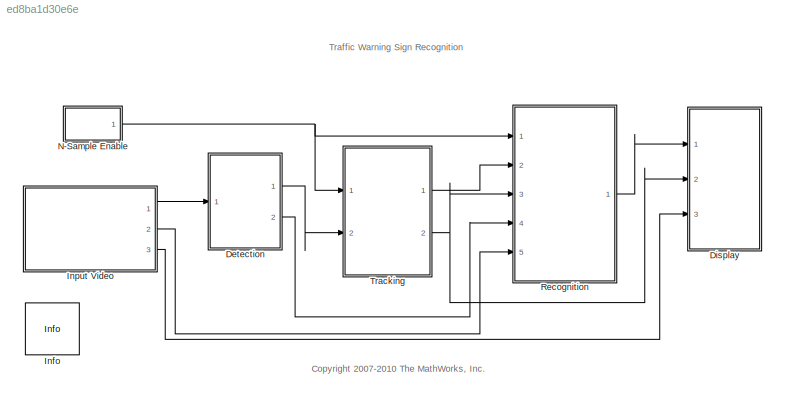
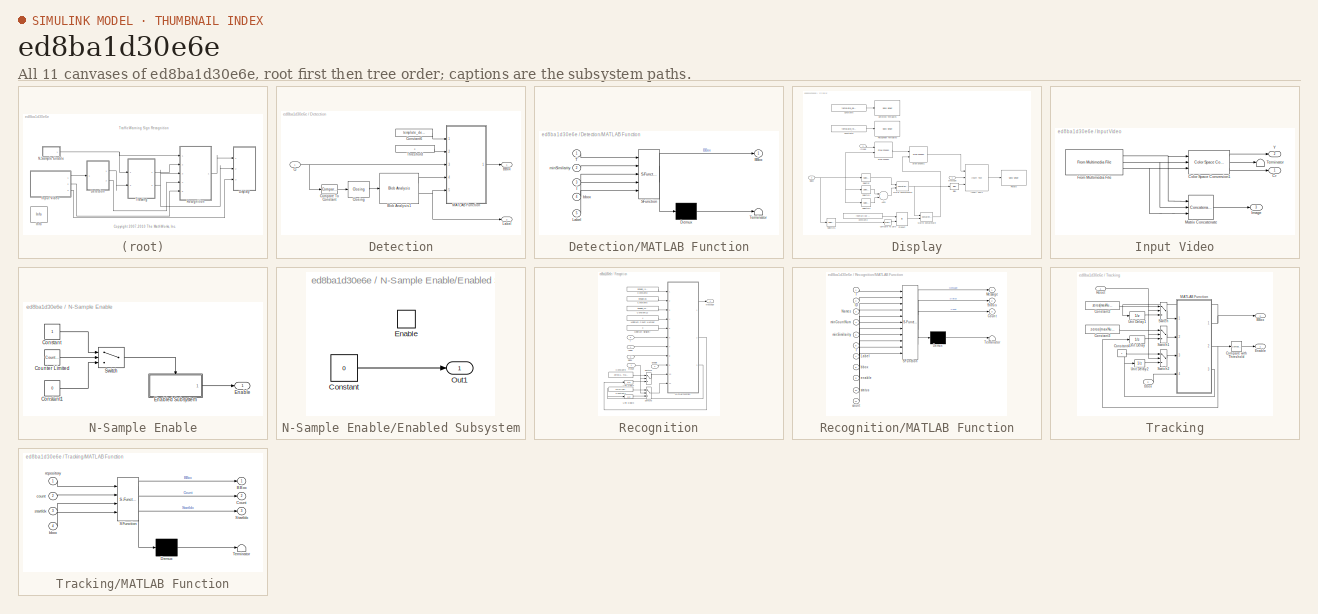
[diagram: thumbnail index - all 11 canvases of the model, root first then tree order]
MODEL slx_ed8ba1d30e6e
KIND model
CONFIG AbsTol = auto
CONFIG FixedStep = auto
CONFIG InitFcn = % Maximum number of signs in a single frame\nmaxNumSigns=9;\n% The .mat file reference below was generated using vipwarningsigns_templates.m\nload vipwarningsigns_templates.mat;
CONFIG MaxStep = auto
CONFIG MinStep = auto
CONFIG RelTol = 1e-3
CONFIG SampleTimeConstraint = Unconstrained
CONFIG Solver = FixedStepDiscrete
CONFIG SolverMode = Auto
CONFIG SolverName = FixedStepDiscrete
CONFIG StartTime = 0
CONFIG StopTime = inf
WORKSPACE source: MATLAB code (in-file)
WORKSPACE MaxBlkWidth = 80
BLOCK [SubSystem] Detection
  Ports = [1, 2]
  RequestExecContextInheritance = off
  Variant = off
BLOCK [Outport] Detection/BBox
  IconDisplay = Port number
BLOCK [Reference] Detection/Blob Analysis1  REF=visionstatistics/Blob Analysis
  Ports = [1, 2]
  SourceBlock = visionstatistics/Blob Analysis
  SourceType = Blob Analysis
  Tag = vipblks_row_conv
BLOCK [Reference] Detection/Closing  REF=visionmorphops/Closing
  Ports = [1, 1]
  SourceBlock = visionmorphops/Closing
  SourceType = Closing
BLOCK [Reference] Detection/Compare To Constant  REF=simulink/Logic and Bit
Operations/Compare
To Constant
  Ports = [1, 1]
  SourceBlock = simulink/Logic and Bit\nOperations/Compare\nTo Constant
  SourceType = Compare To Constant
BLOCK [Constant] Detection/Constant6
  OutDataTypeStr = single
  Value = template_detection
BLOCK [Inport] Detection/Cr
  IconDisplay = Port number
BLOCK [Outport] Detection/Label
  IconDisplay = Port number
  Port = 2
BLOCK [SubSystem] Detection/MATLAB Function
  ErrorFcn = Stateflow.Translate.translate
  PermitHierarchicalResolution = ExplicitOnly
  Ports = [5, 1]
  RequestExecContextInheritance = off
  SFBlockType = MATLAB Function
  TreatAsAtomicUnit = on
  Variant = off
BLOCK [Demux] Detection/MATLAB Function/ Demux 
  Outputs = 1
  Ports = [1, 1]
BLOCK [S-Function] Detection/MATLAB Function/ SFunction 
  EnableBusSupport = on
  FunctionName = sf_sfun
  PortCounts = [5 2]
  Ports = [5, 2]
  SFunctionDeploymentMode = off
  Tag = Stateflow S-Function vipwarningsigns 3
BLOCK [Terminator] Detection/MATLAB Function/ Terminator 
BLOCK [Outport] Detection/MATLAB Function/BBox
  IconDisplay = Port number
BLOCK [Inport] Detection/MATLAB Function/I
  IconDisplay = Port number
  Port = 3
BLOCK [Inport] Detection/MATLAB Function/Label
  IconDisplay = Port number
  Port = 5
BLOCK [Inport] Detection/MATLAB Function/T
  IconDisplay = Port number
BLOCK [Inport] Detection/MATLAB Function/bbox
  IconDisplay = Port number
  Port = 4
BLOCK [Inport] Detection/MATLAB Function/minSimilarity
  IconDisplay = Port number
  Port = 2
BLOCK [Constant] Detection/Threshold
  OutDataTypeStr = single
  Value = 2
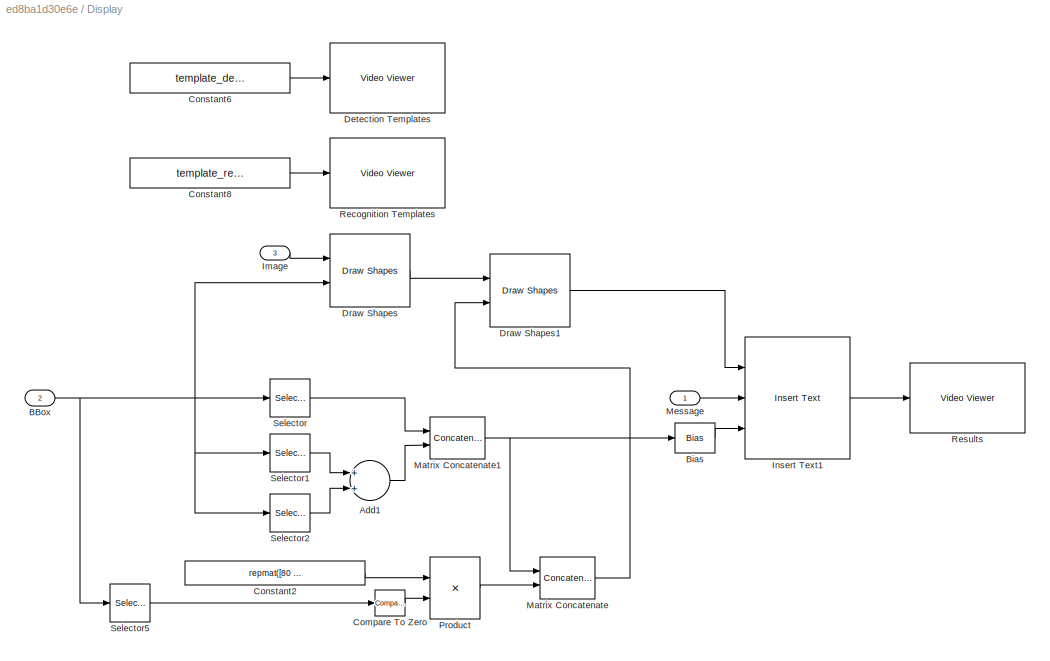
BLOCK [SubSystem] Display
  Ports = [3]
  RequestExecContextInheritance = off
  Variant = off
BLOCK [Sum] Display/Add1
  InputSameDT = off
  OutDataTypeStr = Inherit: Inherit via internal rule
  Ports = [2, 1]
  SaturateOnIntegerOverflow = off
BLOCK [Inport] Display/BBox
  IconDisplay = Port number
  Port = 2
BLOCK [Bias] Display/Bias
  Bias = 2
  SaturateOnIntegerOverflow = off
BLOCK [Reference] Display/Compare To Zero  REF=simulink/Logic and Bit
Operations/Compare
To Zero
  Ports = [1, 1]
  SourceBlock = simulink/Logic and Bit\nOperations/Compare\nTo Zero
  SourceType = Compare To Zero
BLOCK [Constant] Display/Constant2
  OutDataTypeStr = single
  Value = repmat([80 35], [maxNumSigns 1])
  VectorParams1D = off
BLOCK [Constant] Display/Constant6
  OutDataTypeStr = single
  Value = template_detection_display
BLOCK [Constant] Display/Constant8
  OutDataTypeStr = single
  Value = template_recognition_display
BLOCK [Reference] Display/Detection Templates  REF=visionsinks/Video Viewer
  Ports = [1]
  SourceBlock = visionsinks/Video Viewer
  SourceType = Video Viewer
  UserDataPersistent = on
BLOCK [Reference] Display/Draw Shapes  REF=visiontextngfix/Draw Shapes
  Ports = [2, 1]
  SourceBlock = visiontextngfix/Draw Shapes
  SourceType = Draw Shapes
BLOCK [Reference] Display/Draw Shapes1  REF=visiontextngfix/Draw Shapes
  Ports = [2, 1]
  SourceBlock = visiontextngfix/Draw Shapes
  SourceType = Draw Shapes
BLOCK [Inport] Display/Image
  IconDisplay = Port number
  Port = 3
BLOCK [Reference] Display/Insert Text1  REF=visiontextngfix/Insert Text
  Ports = [3, 1]
  SourceBlock = visiontextngfix/Insert Text
  SourceType = Insert Text
BLOCK [Concatenate] Display/Matrix Concatenate
  ConcatenateDimension = 2
  Mode = Multidimensional array
  Ports = [2, 1]
BLOCK [Concatenate] Display/Matrix Concatenate1
  ConcatenateDimension = 2
  Mode = Multidimensional array
  Ports = [2, 1]
BLOCK [Inport] Display/Message
  IconDisplay = Port number
BLOCK [Product] Display/Product
  InputSameDT = off
  OutDataTypeStr = Inherit: Inherit via internal rule
  Ports = [2, 1]
  SaturateOnIntegerOverflow = off
BLOCK [Reference] Display/Recognition Templates  REF=visionsinks/Video Viewer
  Ports = [1]
  SourceBlock = visionsinks/Video Viewer
  SourceType = Video Viewer
  UserDataPersistent = on
BLOCK [Reference] Display/Results  REF=visionsinks/Video Viewer
  Ports = [1]
  SourceBlock = visionsinks/Video Viewer
  SourceType = Video Viewer
  UserDataPersistent = on
BLOCK [Selector] Display/Selector
  IndexOptions = Select all,Index vector (dialog)
  Indices = 1,1
  InputPortWidth = 4
  NumberOfDimensions = 2
  OutputSizes = 1,1
  Ports = [1, 1]
BLOCK [Selector] Display/Selector1
  IndexOptions = Select all,Index vector (dialog)
  Indices = 3,2
  InputPortWidth = 4
  NumberOfDimensions = 2
  OutputSizes = 1,1
  Ports = [1, 1]
BLOCK [Selector] Display/Selector2
  IndexOptions = Select all,Index vector (dialog)
  Indices = 2,4
  InputPortWidth = 4
  NumberOfDimensions = 2
  OutputSizes = 1,1
  Ports = [1, 1]
BLOCK [Selector] Display/Selector5
  IndexOptions = Select all,Index vector (dialog)
  Indices = [3 4],[3 4]
  InputPortWidth = 4
  NumberOfDimensions = 2
  OutputSizes = 1,1
  Ports = [1, 1]
BLOCK [Reference] Info  REF=vipmisc/Info
  Ports = []
  SourceBlock = vipmisc/Info
  SourceType = Info
BLOCK [SubSystem] Input Video
  Ports = [0, 3]
  RequestExecContextInheritance = off
  Variant = off
BLOCK [Reference] Input Video/Color Space Conversion1  REF=visionconversions/Color Space
 Conversion
  Ports = [3, 3]
  SourceBlock = visionconversions/Color Space\n Conversion
  SourceType = Color Space Conversion
BLOCK [Outport] Input Video/Cr
  IconDisplay = Port number
BLOCK [Reference] Input Video/From Multimedia File  REF=dspvision/From Multimedia File
  Ports = [0, 3]
  SourceBlock = dspvision/From Multimedia File
  SourceType = From Multimedia File
BLOCK [Outport] Input Video/Image
  IconDisplay = Port number
  Port = 3
BLOCK [Concatenate] Input Video/Matrix Concatenate
  ConcatenateDimension = 3
  Mode = Multidimensional array
  NumInputs = 3
  Ports = [3, 1]
BLOCK [Terminator] Input Video/Terminator
BLOCK [Outport] Input Video/Y
  IconDisplay = Port number
  Port = 2
BLOCK [SubSystem] N-Sample Enable
  Ports = [0, 1]
  RequestExecContextInheritance = off
  Variant = off
BLOCK [Constant] N-Sample Enable/Constant
  OutDataTypeStr = boolean
BLOCK [Constant] N-Sample Enable/Constant1
  OutDataTypeStr = boolean
  Value = 0
BLOCK [Reference] N-Sample Enable/Counter Limited  REF=simulink/Sources/Counter
Limited
  Ports = [0, 1]
  SourceBlock = simulink/Sources/Counter\nLimited
  SourceType = Counter Limited
BLOCK [Outport] N-Sample Enable/Enable
  IconDisplay = Port number
BLOCK [SubSystem] N-Sample Enable/Enabled Subsystem
  Ports = [0, 1, 1]
  RequestExecContextInheritance = off
  TreatAsAtomicUnit = on
  Variant = off
BLOCK [Constant] N-Sample Enable/Enabled Subsystem/Constant
  OutDataTypeStr = boolean
  Value = 0
BLOCK [EnablePort] N-Sample Enable/Enabled Subsystem/Enable
  Ports = []
BLOCK [Outport] N-Sample Enable/Enabled Subsystem/Out1
  IconDisplay = Port number
  InitialOutput = 1
BLOCK [Switch] N-Sample Enable/Switch
  InputSameDT = off
  SaturateOnIntegerOverflow = off
  Threshold = sample
BLOCK [SubSystem] Recognition
  Ports = [5, 1]
  RequestExecContextInheritance = off
  Variant = off
BLOCK [Inport] Recognition/BBox
  IconDisplay = Port number
  Port = 3
BLOCK [Constant] Recognition/Constant12
  OutDataTypeStr = single
  Value = template_names
BLOCK [Constant] Recognition/Constant5
  OutDataTypeStr = single
  Value = template_ids
BLOCK [Constant] Recognition/Constant7
  OutDataTypeStr = single
  Value = zeros(1, maxNumSigns)
BLOCK [Constant] Recognition/Constant8
  OutDataTypeStr = single
  Value = template_recognition
BLOCK [Constant] Recognition/Constant9
  OutDataTypeStr = single
  Value = zeros(1, maxNumSigns)
BLOCK [Inport] Recognition/Enable
  IconDisplay = Port number
  Port = 2
BLOCK [Inport] Recognition/Label
  IconDisplay = Port number
  Port = 4
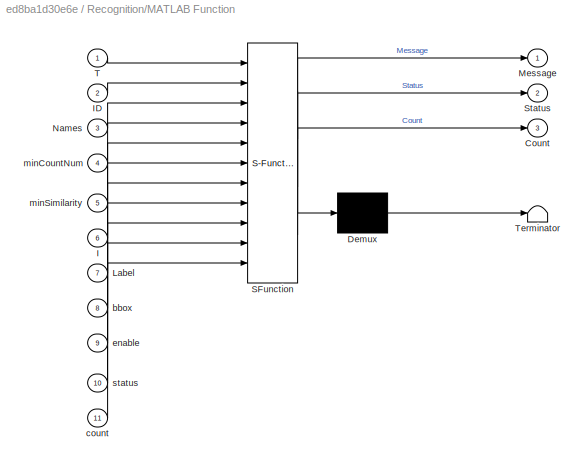
BLOCK [SubSystem] Recognition/MATLAB Function
  ErrorFcn = Stateflow.Translate.translate
  PermitHierarchicalResolution = ExplicitOnly
  Ports = [11, 3]
  RequestExecContextInheritance = off
  SFBlockType = MATLAB Function
  TreatAsAtomicUnit = on
  Variant = off
BLOCK [Demux] Recognition/MATLAB Function/ Demux 
  Outputs = 1
  Ports = [1, 1]
BLOCK [S-Function] Recognition/MATLAB Function/ SFunction 
  EnableBusSupport = on
  FunctionName = sf_sfun
  PortCounts = [11 4]
  Ports = [11, 4]
  SFunctionDeploymentMode = off
  Tag = Stateflow S-Function vipwarningsigns 2
BLOCK [Terminator] Recognition/MATLAB Function/ Terminator 
BLOCK [Outport] Recognition/MATLAB Function/Count
  IconDisplay = Port number
  Port = 3
BLOCK [Inport] Recognition/MATLAB Function/I
  IconDisplay = Port number
  Port = 6
BLOCK [Inport] Recognition/MATLAB Function/ID
  IconDisplay = Port number
  Port = 2
BLOCK [Inport] Recognition/MATLAB Function/Label
  IconDisplay = Port number
  Port = 7
BLOCK [Outport] Recognition/MATLAB Function/Message
  IconDisplay = Port number
BLOCK [Inport] Recognition/MATLAB Function/Names
  IconDisplay = Port number
  Port = 3
BLOCK [Outport] Recognition/MATLAB Function/Status
  IconDisplay = Port number
  Port = 2
BLOCK [Inport] Recognition/MATLAB Function/T
  IconDisplay = Port number
BLOCK [Inport] Recognition/MATLAB Function/bbox
  IconDisplay = Port number
  Port = 8
BLOCK [Inport] Recognition/MATLAB Function/count
  IconDisplay = Port number
  Port = 11
BLOCK [Inport] Recognition/MATLAB Function/enable
  IconDisplay = Port number
  Port = 9
BLOCK [Inport] Recognition/MATLAB Function/minCountNum
  IconDisplay = Port number
  Port = 4
BLOCK [Inport] Recognition/MATLAB Function/minSimilarity
  IconDisplay = Port number
  Port = 5
BLOCK [Inport] Recognition/MATLAB Function/status
  IconDisplay = Port number
  Port = 10
BLOCK [Outport] Recognition/Message
  IconDisplay = Port number
BLOCK [Constant] Recognition/Minimum Count Number
  OutDataTypeStr = single
  Value = 4
BLOCK [Constant] Recognition/Minimum Similarity
  OutDataTypeStr = single
  Value = 0
BLOCK [Inport] Recognition/Reset
  IconDisplay = Port number
BLOCK [Switch] Recognition/Switch3
  Criteria = u2 ~= 0
  OutDataTypeStr = Inherit: Inherit via back propagation
  SaturateOnIntegerOverflow = off
BLOCK [Switch] Recognition/Switch4
  Criteria = u2 ~= 0
  OutDataTypeStr = Inherit: Inherit via back propagation
  SaturateOnIntegerOverflow = off
BLOCK [UnitDelay] Recognition/Unit Delay3
  SampleTime = -1
BLOCK [UnitDelay] Recognition/Unit Delay4
  SampleTime = -1
BLOCK [Inport] Recognition/Y
  IconDisplay = Port number
  Port = 5
BLOCK [SubSystem] Tracking
  Ports = [2, 2]
  RequestExecContextInheritance = off
  Variant = off
BLOCK [Outport] Tracking/BBox
  IconDisplay = Port number
  Port = 2
BLOCK [Reference] Tracking/Compare with Threshold  REF=simulink/Logic and Bit
Operations/Compare
To Constant
  Ports = [1, 1]
  SourceBlock = simulink/Logic and Bit\nOperations/Compare\nTo Constant
  SourceType = Compare To Constant
BLOCK [Constant] Tracking/Constant2
  OutDataTypeStr = single
  Value = zeros(maxNumSigns,4)
BLOCK [Constant] Tracking/Constant3
  OutDataTypeStr = single
  Value = zeros(maxNumSigns,1)
BLOCK [Constant] Tracking/Constant4
  OutDataTypeStr = single
BLOCK [Outport] Tracking/Enable
  IconDisplay = Port number
BLOCK [SubSystem] Tracking/MATLAB Function
  ErrorFcn = Stateflow.Translate.translate
  PermitHierarchicalResolution = ExplicitOnly
  Ports = [4, 3]
  RequestExecContextInheritance = off
  SFBlockType = MATLAB Function
  TreatAsAtomicUnit = on
  Variant = off
BLOCK [Demux] Tracking/MATLAB Function/ Demux 
  Outputs = 1
  Ports = [1, 1]
BLOCK [S-Function] Tracking/MATLAB Function/ SFunction 
  EnableBusSupport = on
  FunctionName = sf_sfun
  Parameters = maxNumSigns
  PortCounts = [4 4]
  Ports = [4, 4]
  SFunctionDeploymentMode = off
  Tag = Stateflow S-Function vipwarningsigns 1
BLOCK [Terminator] Tracking/MATLAB Function/ Terminator 
BLOCK [Outport] Tracking/MATLAB Function/BBox
  IconDisplay = Port number
BLOCK [Outport] Tracking/MATLAB Function/Count
  IconDisplay = Port number
  Port = 2
BLOCK [Outport] Tracking/MATLAB Function/StartIdx
  IconDisplay = Port number
  Port = 3
BLOCK [Inport] Tracking/MATLAB Function/bbox
  IconDisplay = Port number
  Port = 4
BLOCK [Inport] Tracking/MATLAB Function/count
  IconDisplay = Port number
  Port = 2
BLOCK [Inport] Tracking/MATLAB Function/repository
  IconDisplay = Port number
BLOCK [Inport] Tracking/MATLAB Function/startIdx
  IconDisplay = Port number
  Port = 3
BLOCK [Inport] Tracking/Reset
  IconDisplay = Port number
BLOCK [Switch] Tracking/Switch
  Criteria = u2 ~= 0
  OutDataTypeStr = Inherit: Inherit via back propagation
  SaturateOnIntegerOverflow = off
  Threshold = 1
BLOCK [Switch] Tracking/Switch1
  Criteria = u2 ~= 0
  SaturateOnIntegerOverflow = off
BLOCK [Switch] Tracking/Switch2
  Criteria = u2 ~= 0
  SaturateOnIntegerOverflow = off
BLOCK [UnitDelay] Tracking/Unit Delay
  SampleTime = -1
BLOCK [UnitDelay] Tracking/Unit Delay1
  SampleTime = -1
BLOCK [UnitDelay] Tracking/Unit Delay2
  SampleTime = -1
BLOCK [Inport] Tracking/bbox
  IconDisplay = Port number
  Port = 2
ANNOTATION (root): <copyright redacted>
ANNOTATION (root): Traffic Warning Sign Recognition
LINE Detection/Blob Analysis1:1 -> Detection/MATLAB Function:4
NET Detection/Blob Analysis1:2 -> Detection/Label:1, Detection/MATLAB Function:5
LINE Detection/Closing:1 -> Detection/Blob Analysis1:1
LINE Detection/Compare To Constant:1 -> Detection/Closing:1
LINE Detection/Constant6:1 -> Detection/MATLAB Function:1
NET Detection/Cr:1 -> Detection/Compare To Constant:1, Detection/MATLAB Function:3
LINE Detection/MATLAB Function:1 -> Detection/BBox:1
LINE Detection/Threshold:1 -> Detection/MATLAB Function:2
LINE Detection:1 -> Tracking:2
LINE Detection:2 -> Recognition:4
LINE Display/Add1:1 -> Display/Matrix Concatenate1:2
NET Display/BBox:1 -> Display/Draw Shapes:2, Display/Selector1:1, Display/Selector2:1, Display/Selector5:1, Display/Selector:1
LINE Display/Bias:1 -> Display/Insert Text1:3
LINE Display/Compare To Zero:1 -> Display/Product:2
LINE Display/Constant2:1 -> Display/Product:1
LINE Display/Constant6:1 -> Display/Detection Templates:1
LINE Display/Constant8:1 -> Display/Recognition Templates:1
LINE Display/Draw Shapes1:1 -> Display/Insert Text1:1
LINE Display/Draw Shapes:1 -> Display/Draw Shapes1:1
LINE Display/Image:1 -> Display/Draw Shapes:1
LINE Display/Insert Text1:1 -> Display/Results:1
NET Display/Matrix Concatenate1:1 -> Display/Bias:1, Display/Matrix Concatenate:1
LINE Display/Matrix Concatenate:1 -> Display/Draw Shapes1:2
LINE Display/Message:1 -> Display/Insert Text1:2
LINE Display/Product:1 -> Display/Matrix Concatenate:2
LINE Display/Selector1:1 -> Display/Add1:1
LINE Display/Selector2:1 -> Display/Add1:2
LINE Display/Selector5:1 -> Display/Compare To Zero:1
LINE Display/Selector:1 -> Display/Matrix Concatenate1:1
LINE Input Video/Color Space Conversion1:1 -> Input Video/Y:1
LINE Input Video/Color Space Conversion1:2 -> Input Video/Terminator:1
LINE Input Video/Color Space Conversion1:3 -> Input Video/Cr:1
NET Input Video/From Multimedia File:1 -> Input Video/Color Space Conversion1:1, Input Video/Matrix Concatenate:1
NET Input Video/From Multimedia File:2 -> Input Video/Color Space Conversion1:2, Input Video/Matrix Concatenate:2
NET Input Video/From Multimedia File:3 -> Input Video/Color Space Conversion1:3, Input Video/Matrix Concatenate:3
LINE Input Video/Matrix Concatenate:1 -> Input Video/Image:1
LINE Input Video:1 -> Detection:1
LINE Input Video:2 -> Recognition:5
LINE Input Video:3 -> Display:3
LINE N-Sample Enable/Constant1:1 -> N-Sample Enable/Switch:3
LINE N-Sample Enable/Constant:1 -> N-Sample Enable/Switch:1
LINE N-Sample Enable/Counter Limited:1 -> N-Sample Enable/Switch:2
LINE N-Sample Enable/Enabled Subsystem/Constant:1 -> N-Sample Enable/Enabled Subsystem/Out1:1
LINE N-Sample Enable/Enabled Subsystem:1 -> N-Sample Enable/Enable:1
LINE N-Sample Enable/Switch:1 -> N-Sample Enable/Enabled Subsystem:enable
NET N-Sample Enable:1 -> Recognition:1, Tracking:1
LINE Recognition/BBox:1 -> Recognition/MATLAB Function:8
LINE Recognition/Constant12:1 -> Recognition/MATLAB Function:3
LINE Recognition/Constant5:1 -> Recognition/MATLAB Function:2
LINE Recognition/Constant7:1 -> Recognition/Switch3:1
LINE Recognition/Constant8:1 -> Recognition/MATLAB Function:1
LINE Recognition/Constant9:1 -> Recognition/Switch4:1
LINE Recognition/Enable:1 -> Recognition/MATLAB Function:9
LINE Recognition/Label:1 -> Recognition/MATLAB Function:7
LINE Recognition/MATLAB Function:1 -> Recognition/Message:1
LINE Recognition/MATLAB Function:2 -> Recognition/Unit Delay4:1
LINE Recognition/MATLAB Function:3 -> Recognition/Unit Delay3:1
LINE Recognition/Minimum Count Number:1 -> Recognition/MATLAB Function:4
LINE Recognition/Minimum Similarity:1 -> Recognition/MATLAB Function:5
NET Recognition/Reset:1 -> Recognition/Switch3:2, Recognition/Switch4:2
LINE Recognition/Switch3:1 -> Recognition/MATLAB Function:11
LINE Recognition/Switch4:1 -> Recognition/MATLAB Function:10
LINE Recognition/Unit Delay3:1 -> Recognition/Switch3:3
LINE Recognition/Unit Delay4:1 -> Recognition/Switch4:3
LINE Recognition/Y:1 -> Recognition/MATLAB Function:6
LINE Recognition:1 -> Display:1
LINE Tracking/Compare with Threshold:1 -> Tracking/Enable:1
LINE Tracking/Constant2:1 -> Tracking/Switch:1
LINE Tracking/Constant3:1 -> Tracking/Switch1:1
LINE Tracking/Constant4:1 -> Tracking/Switch2:1
NET Tracking/MATLAB Function:1 -> Tracking/BBox:1, Tracking/Unit Delay1:1
NET Tracking/MATLAB Function:2 -> Tracking/Compare with Threshold:1, Tracking/Unit Delay:1
LINE Tracking/MATLAB Function:3 -> Tracking/Unit Delay2:1
NET Tracking/Reset:1 -> Tracking/Switch1:2, Tracking/Switch2:2, Tracking/Switch:2
LINE Tracking/Switch1:1 -> Tracking/MATLAB Function:2
LINE Tracking/Switch2:1 -> Tracking/MATLAB Function:3
LINE Tracking/Switch:1 -> Tracking/MATLAB Function:1
LINE Tracking/Unit Delay1:1 -> Tracking/Switch:3
LINE Tracking/Unit Delay2:1 -> Tracking/Switch2:3
LINE Tracking/Unit Delay:1 -> Tracking/Switch1:3
LINE Tracking/bbox:1 -> Tracking/MATLAB Function:4
LINE Tracking:1 -> Recognition:2
NET Tracking:2 -> Display:2, Recognition:3
note: NET lines group one-source signal fan-out (src -> all destinations, sorted); 1:1 wires keep LINE
CHART Tracking/MATLAB Function states=1 transitions=1
  STATE_LABEL 'eML_blk_kernel()'
  STATE_LABEL 'SCRIPT:\nfunction [BBox, Count, StartIdx] = Match(repository, count, startIdx, bbox, maxNumSigns)\n% This function matches the targets found in the current video frame with\n% those found in the previous frame. Targets in two video frames match\n% when their bounding boxes overlap.\n%\n% Input:\n%    repository: \n%       Bounding boxes of the targets found in the previous\n%       frame. Each column has t...<+2931ch>'
CHART Recognition/MATLAB Function states=1 transitions=1
  STATE_LABEL 'eML_blk_kernel()'
  STATE_LABEL 'SCRIPT:\nfunction [Message, Status, Count] = Recognition(T, ID, Names, ...\n    minCountNum, minSimilarity, I, Label, bbox, enable, status, count)\n% This function finds the targets that are similar to any of the \n% templates. Similarity measure is calculated by correlation.\n%\n% Input:\n%    T: \n%       Templates. Size is M-by-N-by-K, where M and N are the number of\n%       rows and the number of colu...<+3608ch>'
CHART Detection/MATLAB Function states=1 transitions=1
  STATE_LABEL 'eML_blk_kernel()'
  STATE_LABEL 'SCRIPT:\nfunction BBox = Detection(T, minSimilarity, I, bbox, Label)\n% This function finds the targets that are similar enough to any of the \n% templates. Similarity measure is calculated by correlation.\n%\n% Input:\n%    T: \n%       Templates. Size is M-by-N-by-K, where M and N are the number of\n%       rows and the number of columns in each template, respectively.\n%       K is the number of templat...<+3608ch>'
